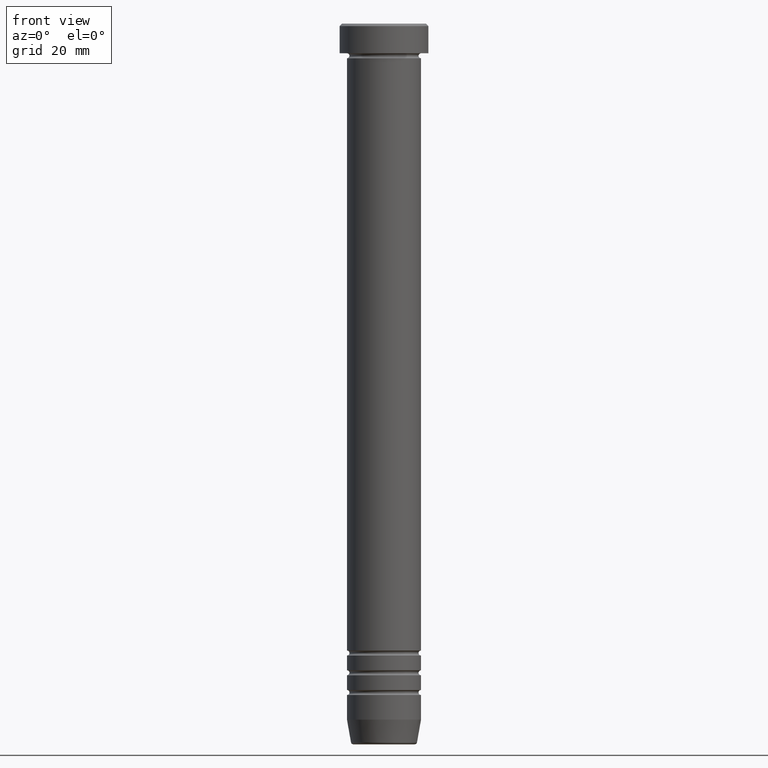
[diagram: clean part render]
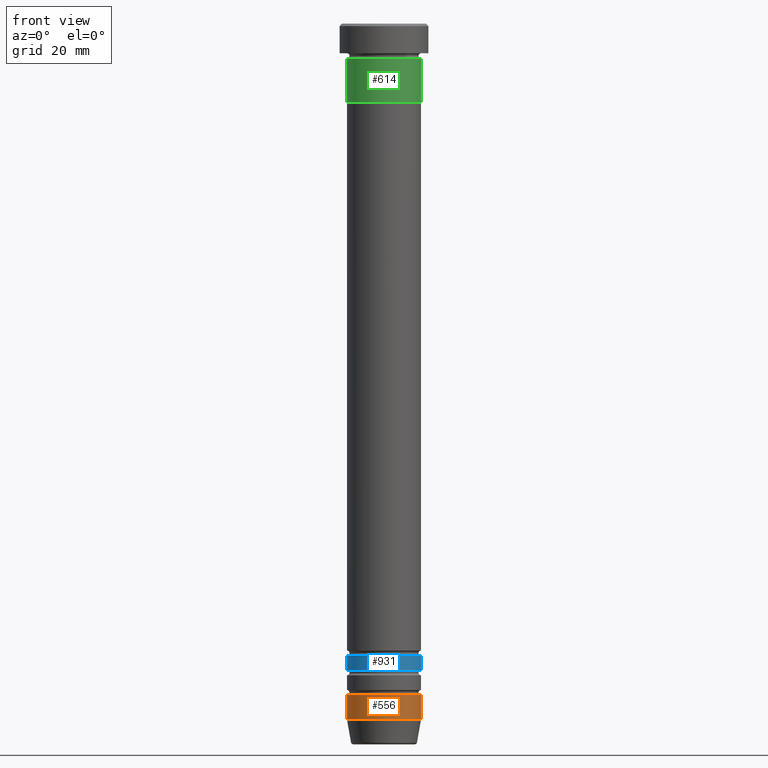
[diagram: same view with three faces highlighted in distinct colors, each labeled with its STEP entity id]
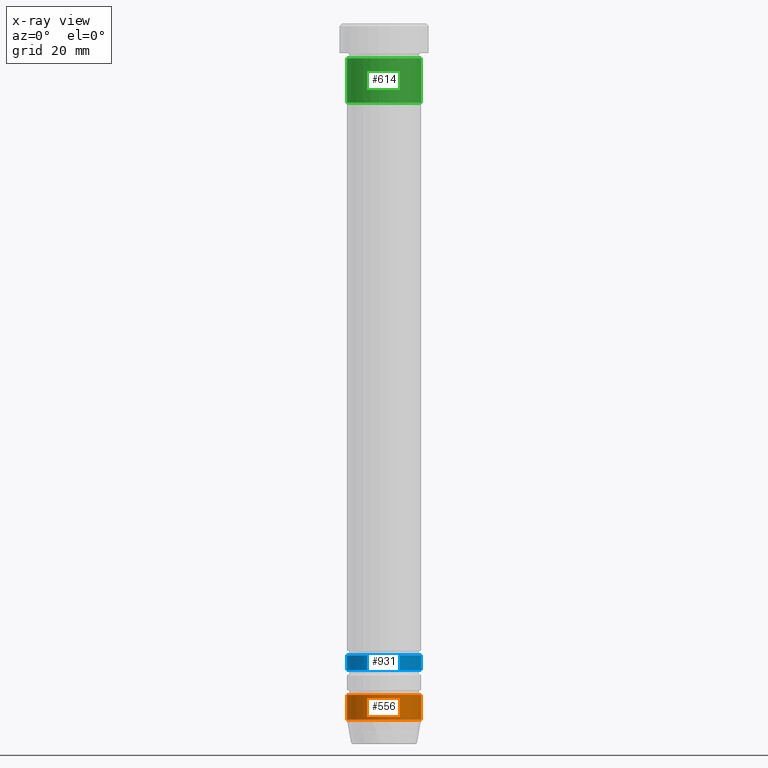
[diagram: x-ray of the same camera — body ghosted, the three highlighted faces saturated]
A machine part, front view with three faces highlighted in distinct colors.
The next image is the same camera in x-ray (body ghosted, the three faces saturated) — at least one of them is partly hidden behind the body in this view.
Their STEP definitions:

[orange] entity #556 — the highlighted cylindrical surface (partial cylindrical patch) has radius 7.5 mm, axis along (-0, -0, 1).
#16 = LINE ( 'NONE', #92, #847 ) ;
#19 = ORIENTED_EDGE ( 'NONE', *, *, #762, .T. ) ;
#20 = CYLINDRICAL_SURFACE ( 'NONE', #244, 7.499999999999998224 ) ;
#38 = DIRECTION ( 'NONE',  ( 1.000000000000000000, 0.000000000000000000, 0.000000000000000000 ) ) ;
#92 = CARTESIAN_POINT ( 'NONE',  ( -7.499999999999998224, 9.184850993605145972E-16, 0.000000000000000000 ) ) ;
#124 = CIRCLE ( 'NONE', #247, 7.499999999999998224 ) ;
#125 = VERTEX_POINT ( 'NONE', #180 ) ;
#127 = VERTEX_POINT ( 'NONE', #264 ) ;
#180 = CARTESIAN_POINT ( 'NONE',  ( -7.499999999999998224, 9.184850993605145972E-16, -136.0000000000000000 ) ) ;
#199 = DIRECTION ( 'NONE',  ( -0.000000000000000000, -0.000000000000000000, 1.000000000000000000 ) ) ;
#203 = VERTEX_POINT ( 'NONE', #450 ) ;
#244 = AXIS2_PLACEMENT_3D ( 'NONE', #716, #199, #822 ) ;
#247 = AXIS2_PLACEMENT_3D ( 'NONE', #867, #595, #962 ) ;
#264 = CARTESIAN_POINT ( 'NONE',  ( 7.499999999999998224, 0.000000000000000000, -136.0000000000000000 ) ) ;
#307 = CARTESIAN_POINT ( 'NONE',  ( 0.000000000000000000, 0.000000000000000000, -141.0000000000000000 ) ) ;
#372 = AXIS2_PLACEMENT_3D ( 'NONE', #307, #830, #38 ) ;
#387 = LINE ( 'NONE', #850, #1034 ) ;
#450 = CARTESIAN_POINT ( 'NONE',  ( -7.499999999999998224, 9.184850993605145972E-16, -141.0000000000000000 ) ) ;
#474 = CARTESIAN_POINT ( 'NONE',  ( 7.499999999999998224, 0.000000000000000000, -141.0000000000000000 ) ) ;
#556 = ADVANCED_FACE ( 'NONE', ( #790 ), #20, .T. ) ;
#560 = DIRECTION ( 'NONE',  ( -0.000000000000000000, -0.000000000000000000, 1.000000000000000000 ) ) ;
#595 = DIRECTION ( 'NONE',  ( -0.000000000000000000, -0.000000000000000000, 1.000000000000000000 ) ) ;
#609 = ORIENTED_EDGE ( 'NONE', *, *, #613, .T. ) ;
#613 = EDGE_CURVE ( 'NONE', #203, #730, #1051, .T. ) ;
#652 = EDGE_CURVE ( 'NONE', #125, #127, #124, .T. ) ;
#716 = CARTESIAN_POINT ( 'NONE',  ( 0.000000000000000000, 0.000000000000000000, 0.000000000000000000 ) ) ;
#730 = VERTEX_POINT ( 'NONE', #474 ) ;
#738 = EDGE_LOOP ( 'NONE', ( #1106, #609, #19, #1003 ) ) ;
#762 = EDGE_CURVE ( 'NONE', #730, #127, #387, .T. ) ;
#790 = FACE_OUTER_BOUND ( 'NONE', #738, .T. ) ;
#822 = DIRECTION ( 'NONE',  ( 1.000000000000000000, 0.000000000000000000, 0.000000000000000000 ) ) ;
#830 = DIRECTION ( 'NONE',  ( -0.000000000000000000, -0.000000000000000000, 1.000000000000000000 ) ) ;
#847 = VECTOR ( 'NONE', #1077, 1000.000000000000000 ) ;
#850 = CARTESIAN_POINT ( 'NONE',  ( 7.499999999999998224, 0.000000000000000000, 0.000000000000000000 ) ) ;
#867 = CARTESIAN_POINT ( 'NONE',  ( 0.000000000000000000, 0.000000000000000000, -136.0000000000000000 ) ) ;
#962 = DIRECTION ( 'NONE',  ( 1.000000000000000000, 0.000000000000000000, 0.000000000000000000 ) ) ;
#1003 = ORIENTED_EDGE ( 'NONE', *, *, #652, .F. ) ;
#1034 = VECTOR ( 'NONE', #560, 1000.000000000000000 ) ;
#1051 = CIRCLE ( 'NONE', #372, 7.499999999999998224 ) ;
#1077 = DIRECTION ( 'NONE',  ( -0.000000000000000000, -0.000000000000000000, 1.000000000000000000 ) ) ;
#1090 = EDGE_CURVE ( 'NONE', #203, #125, #16, .T. ) ;
#1106 = ORIENTED_EDGE ( 'NONE', *, *, #1090, .F. ) ;

[blue] entity #931 — the highlighted cylindrical surface (partial cylindrical patch) has radius 7.5 mm, axis along (-0, -0, 1).
#30 = VECTOR ( 'NONE', #429, 1000.000000000000000 ) ;
#37 = DIRECTION ( 'NONE',  ( 1.000000000000000000, 0.000000000000000000, 0.000000000000000000 ) ) ;
#118 = CARTESIAN_POINT ( 'NONE',  ( 0.000000000000000000, 0.000000000000000000, -131.0000000000000284 ) ) ;
#126 = DIRECTION ( 'NONE',  ( -0.000000000000000000, -0.000000000000000000, 1.000000000000000000 ) ) ;
#131 = ORIENTED_EDGE ( 'NONE', *, *, #878, .F. ) ;
#160 = DIRECTION ( 'NONE',  ( -0.000000000000000000, -0.000000000000000000, 1.000000000000000000 ) ) ;
#217 = CARTESIAN_POINT ( 'NONE',  ( -7.499999999999997335, 9.184850993605145972E-16, 0.000000000000000000 ) ) ;
#228 = CYLINDRICAL_SURFACE ( 'NONE', #977, 7.499999999999997335 ) ;
#253 = EDGE_CURVE ( 'NONE', #1021, #655, #1002, .T. ) ;
#296 = ORIENTED_EDGE ( 'NONE', *, *, #918, .F. ) ;
#341 = EDGE_CURVE ( 'NONE', #965, #1021, #349, .T. ) ;
#349 = CIRCLE ( 'NONE', #532, 7.499999999999996447 ) ;
#352 = CIRCLE ( 'NONE', #936, 7.499999999999998224 ) ;
#429 = DIRECTION ( 'NONE',  ( -0.000000000000000000, -0.000000000000000000, 1.000000000000000000 ) ) ;
#496 = CARTESIAN_POINT ( 'NONE',  ( 7.499999999999996447, 0.000000000000000000, -131.0000000000000284 ) ) ;
#532 = AXIS2_PLACEMENT_3D ( 'NONE', #118, #126, #37 ) ;
#543 = CARTESIAN_POINT ( 'NONE',  ( 7.499999999999997335, 0.000000000000000000, 0.000000000000000000 ) ) ;
#548 = VERTEX_POINT ( 'NONE', #694 ) ;
#579 = DIRECTION ( 'NONE',  ( -0.000000000000000000, -0.000000000000000000, 1.000000000000000000 ) ) ;
#593 = FACE_OUTER_BOUND ( 'NONE', #844, .T. ) ;
#655 = VERTEX_POINT ( 'NONE', #783 ) ;
#661 = DIRECTION ( 'NONE',  ( 1.000000000000000000, 0.000000000000000000, 0.000000000000000000 ) ) ;
#666 = CARTESIAN_POINT ( 'NONE',  ( 0.000000000000000000, 0.000000000000000000, -128.0000000000000284 ) ) ;
#684 = CARTESIAN_POINT ( 'NONE',  ( -7.499999999999996447, 9.184850993605145972E-16, -131.0000000000000284 ) ) ;
#692 = ORIENTED_EDGE ( 'NONE', *, *, #341, .T. ) ;
#694 = CARTESIAN_POINT ( 'NONE',  ( -7.499999999999999112, 9.184850993605147944E-16, -128.0000000000000284 ) ) ;
#715 = ORIENTED_EDGE ( 'NONE', *, *, #253, .T. ) ;
#783 = CARTESIAN_POINT ( 'NONE',  ( 7.499999999999998224, 0.000000000000000000, -128.0000000000000284 ) ) ;
#793 = LINE ( 'NONE', #217, #1035 ) ;
#844 = EDGE_LOOP ( 'NONE', ( #131, #692, #715, #296 ) ) ;
#878 = EDGE_CURVE ( 'NONE', #965, #548, #793, .T. ) ;
#918 = EDGE_CURVE ( 'NONE', #548, #655, #352, .T. ) ;
#931 = ADVANCED_FACE ( 'NONE', ( #593 ), #228, .T. ) ;
#936 = AXIS2_PLACEMENT_3D ( 'NONE', #666, #160, #661 ) ;
#960 = DIRECTION ( 'NONE',  ( 1.000000000000000000, 0.000000000000000000, 0.000000000000000000 ) ) ;
#965 = VERTEX_POINT ( 'NONE', #684 ) ;
#977 = AXIS2_PLACEMENT_3D ( 'NONE', #1032, #579, #960 ) ;
#1002 = LINE ( 'NONE', #543, #30 ) ;
#1021 = VERTEX_POINT ( 'NONE', #496 ) ;
#1032 = CARTESIAN_POINT ( 'NONE',  ( 0.000000000000000000, 0.000000000000000000, 0.000000000000000000 ) ) ;
#1035 = VECTOR ( 'NONE', #1117, 1000.000000000000000 ) ;
#1117 = DIRECTION ( 'NONE',  ( -0.000000000000000000, -0.000000000000000000, 1.000000000000000000 ) ) ;

[green] entity #614 — the highlighted cylindrical surface (partial cylindrical patch) has radius 7.5 mm, axis along (-0, -0, 1).
#24 = VERTEX_POINT ( 'NONE', #597 ) ;
#101 = CARTESIAN_POINT ( 'NONE',  ( -7.500000000000000000, 9.184850993605147944E-16, 0.000000000000000000 ) ) ;
#108 = CIRCLE ( 'NONE', #448, 7.500000000000000000 ) ;
#132 = DIRECTION ( 'NONE',  ( 1.000000000000000000, 0.000000000000000000, 0.000000000000000000 ) ) ;
#146 = ORIENTED_EDGE ( 'NONE', *, *, #354, .T. ) ;
#166 = DIRECTION ( 'NONE',  ( -0.000000000000000000, -0.000000000000000000, 1.000000000000000000 ) ) ;
#175 = AXIS2_PLACEMENT_3D ( 'NONE', #292, #908, #132 ) ;
#179 = EDGE_CURVE ( 'NONE', #24, #1070, #1087, .T. ) ;
#195 = AXIS2_PLACEMENT_3D ( 'NONE', #1101, #1011, #748 ) ;
#204 = DIRECTION ( 'NONE',  ( -0.000000000000000000, -0.000000000000000000, 1.000000000000000000 ) ) ;
#292 = CARTESIAN_POINT ( 'NONE',  ( 0.000000000000000000, 0.000000000000000000, -16.00000000000000000 ) ) ;
#294 = FACE_OUTER_BOUND ( 'NONE', #475, .T. ) ;
#306 = VERTEX_POINT ( 'NONE', #401 ) ;
#320 = DIRECTION ( 'NONE',  ( -0.000000000000000000, -0.000000000000000000, 1.000000000000000000 ) ) ;
#333 = VECTOR ( 'NONE', #166, 1000.000000000000000 ) ;
#354 = EDGE_CURVE ( 'NONE', #24, #511, #1084, .T. ) ;
#401 = CARTESIAN_POINT ( 'NONE',  ( 7.500000000000000000, 0.000000000000000000, -6.999999999999999112 ) ) ;
#407 = ORIENTED_EDGE ( 'NONE', *, *, #541, .T. ) ;
#433 = ORIENTED_EDGE ( 'NONE', *, *, #968, .F. ) ;
#448 = AXIS2_PLACEMENT_3D ( 'NONE', #853, #320, #1046 ) ;
#475 = EDGE_LOOP ( 'NONE', ( #813, #146, #407, #433 ) ) ;
#511 = VERTEX_POINT ( 'NONE', #795 ) ;
#541 = EDGE_CURVE ( 'NONE', #511, #306, #594, .T. ) ;
#594 = LINE ( 'NONE', #961, #333 ) ;
#597 = CARTESIAN_POINT ( 'NONE',  ( -7.500000000000000000, 9.184850993605147944E-16, -16.00000000000000000 ) ) ;
#614 = ADVANCED_FACE ( 'NONE', ( #294 ), #939, .T. ) ;
#711 = CARTESIAN_POINT ( 'NONE',  ( -7.500000000000000000, 9.184850993605147944E-16, -6.999999999999999112 ) ) ;
#748 = DIRECTION ( 'NONE',  ( 1.000000000000000000, 0.000000000000000000, 0.000000000000000000 ) ) ;
#795 = CARTESIAN_POINT ( 'NONE',  ( 7.500000000000000000, 0.000000000000000000, -16.00000000000000000 ) ) ;
#813 = ORIENTED_EDGE ( 'NONE', *, *, #179, .F. ) ;
#853 = CARTESIAN_POINT ( 'NONE',  ( 0.000000000000000000, 0.000000000000000000, -6.999999999999999112 ) ) ;
#908 = DIRECTION ( 'NONE',  ( -0.000000000000000000, -0.000000000000000000, 1.000000000000000000 ) ) ;
#939 = CYLINDRICAL_SURFACE ( 'NONE', #195, 7.500000000000000000 ) ;
#961 = CARTESIAN_POINT ( 'NONE',  ( 7.500000000000000000, 0.000000000000000000, 0.000000000000000000 ) ) ;
#968 = EDGE_CURVE ( 'NONE', #1070, #306, #108, .T. ) ;
#993 = VECTOR ( 'NONE', #204, 1000.000000000000000 ) ;
#1011 = DIRECTION ( 'NONE',  ( -0.000000000000000000, -0.000000000000000000, 1.000000000000000000 ) ) ;
#1046 = DIRECTION ( 'NONE',  ( 1.000000000000000000, 0.000000000000000000, 0.000000000000000000 ) ) ;
#1070 = VERTEX_POINT ( 'NONE', #711 ) ;
#1084 = CIRCLE ( 'NONE', #175, 7.500000000000000000 ) ;
#1087 = LINE ( 'NONE', #101, #993 ) ;
#1101 = CARTESIAN_POINT ( 'NONE',  ( 0.000000000000000000, 0.000000000000000000, 0.000000000000000000 ) ) ;